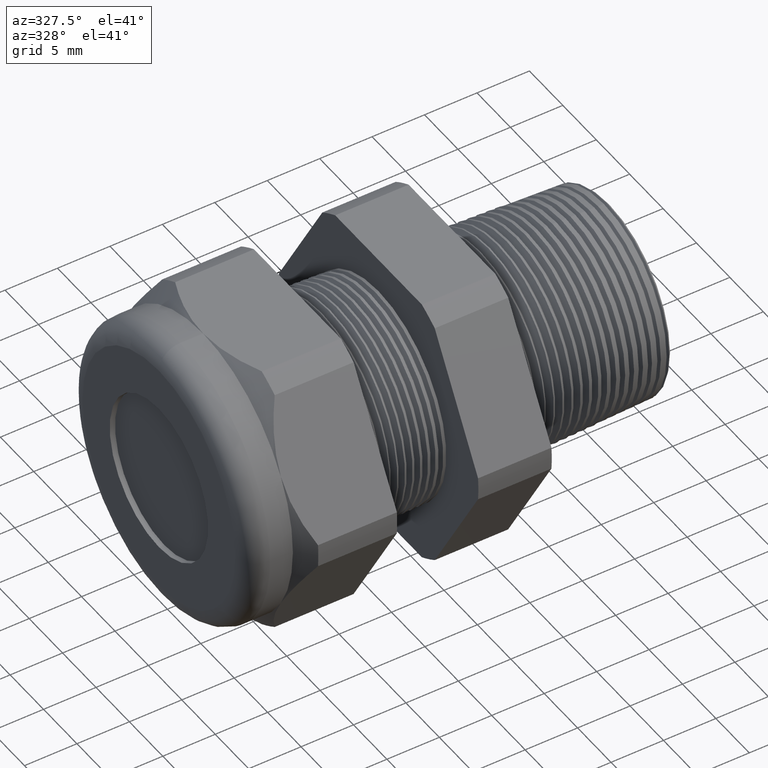
[diagram: clean part render]
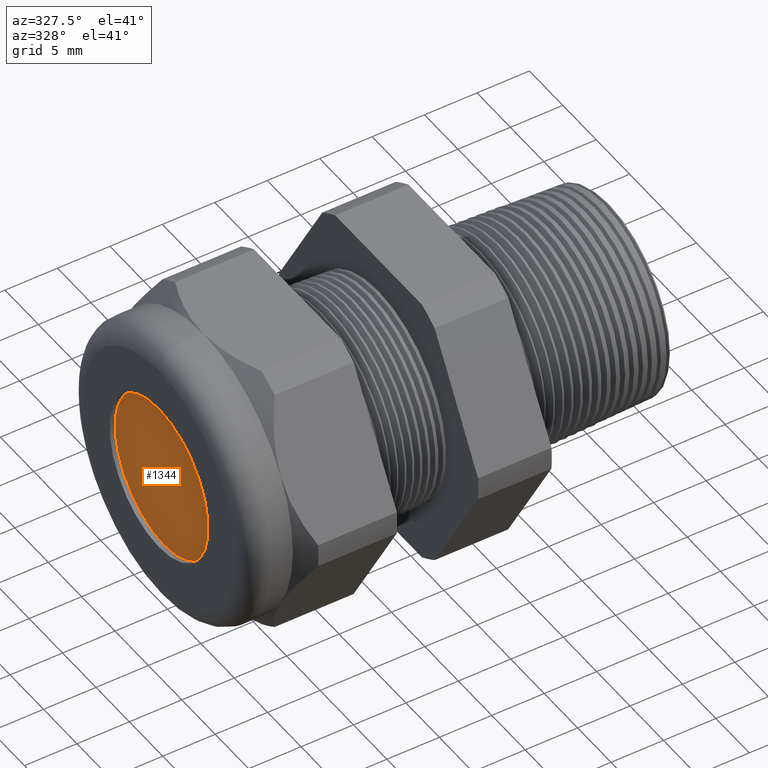
[diagram: same view with one face highlighted and labeled with its STEP entity id]
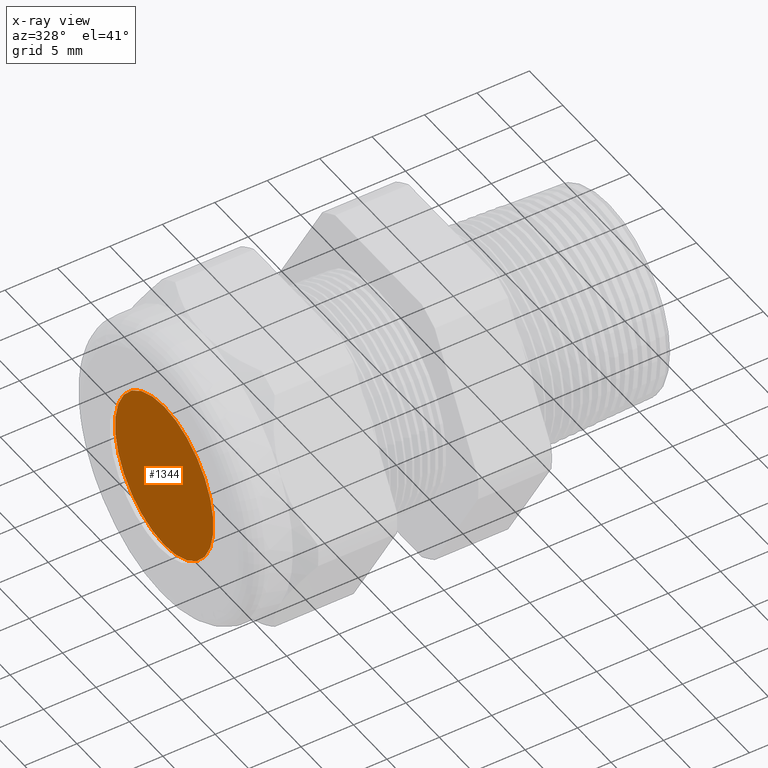
[diagram: x-ray of the same camera — body ghosted, the highlighted face saturated]
A machine part, auxiliary view. The second image highlights one B-rep face of the part: STEP entity #1344.
The next image is the same camera in x-ray: the body ghosted, the highlighted face saturated — about 0% of this face is hidden behind the body in this view.
In plain terms, the highlighted planar face has unit normal (-1, 0, 0).
Its self-contained STEP definition (entity closure, byte-faithful):
#1340 = ORIENTED_EDGE ( 'NONE', *, *, #1402, .T. ) ;
#1343 = EDGE_LOOP ( 'NONE', ( #1340, #1408 ) ) ;
#1344 = ADVANCED_FACE ( 'NONE', ( #4247 ), #4246, .T. ) ;
#1380 = EDGE_CURVE ( 'NONE', #1381, #1382, #4330, .T. ) ;
#1381 = VERTEX_POINT ( 'NONE', #4321 ) ;
#1382 = VERTEX_POINT ( 'NONE', #4320 ) ;
#1402 = EDGE_CURVE ( 'NONE', #1382, #1381, #4359, .T. ) ;
#1408 = ORIENTED_EDGE ( 'NONE', *, *, #1380, .T. ) ;
#4241 = DIRECTION ( 'NONE',  ( 0.0000000000000000000, 0.0000000000000000000, 1.000000000000000000 ) ) ;
#4242 = DIRECTION ( 'NONE',  ( -1.000000000000000000, 0.0000000000000000000, 0.0000000000000000000 ) ) ;
#4243 = CARTESIAN_POINT ( 'NONE',  ( -1.389999999999999900, 0.0000000000000000000, 0.0000000000000000000 ) ) ;
#4244 = AXIS2_PLACEMENT_3D ( 'NONE', #4243, #4242, #4241 ) ;
#4246 = PLANE ( 'NONE',  #4244 ) ;
#4247 = FACE_OUTER_BOUND ( 'NONE', #1343, .T. ) ;
#4320 = CARTESIAN_POINT ( 'NONE',  ( -1.389999999999999900, 0.0000000000000000000, 0.2899999999999999200 ) ) ;
#4321 = CARTESIAN_POINT ( 'NONE',  ( -1.389999999999999900, 3.551475717527323800E-017, -0.2899999999999999200 ) ) ;
#4322 = DIRECTION ( 'NONE',  ( 0.0000000000000000000, 0.0000000000000000000, 1.000000000000000000 ) ) ;
#4323 = DIRECTION ( 'NONE',  ( -1.000000000000000000, 0.0000000000000000000, 0.0000000000000000000 ) ) ;
#4324 = CARTESIAN_POINT ( 'NONE',  ( -1.389999999999999900, 0.0000000000000000000, 0.0000000000000000000 ) ) ;
#4325 = AXIS2_PLACEMENT_3D ( 'NONE', #4324, #4323, #4322 ) ;
#4330 = CIRCLE ( 'NONE', #4325, 0.2899999999999999200 ) ;
#4351 = DIRECTION ( 'NONE',  ( 0.0000000000000000000, 0.0000000000000000000, 1.000000000000000000 ) ) ;
#4352 = DIRECTION ( 'NONE',  ( -1.000000000000000000, 0.0000000000000000000, 0.0000000000000000000 ) ) ;
#4353 = CARTESIAN_POINT ( 'NONE',  ( -1.389999999999999900, 0.0000000000000000000, 0.0000000000000000000 ) ) ;
#4354 = AXIS2_PLACEMENT_3D ( 'NONE', #4353, #4352, #4351 ) ;
#4359 = CIRCLE ( 'NONE', #4354, 0.2899999999999999200 ) ;